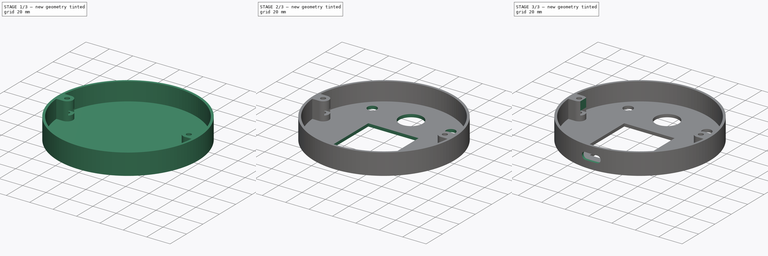
[diagram: build sequence overview — one tinted view per stage of 3, left to right]
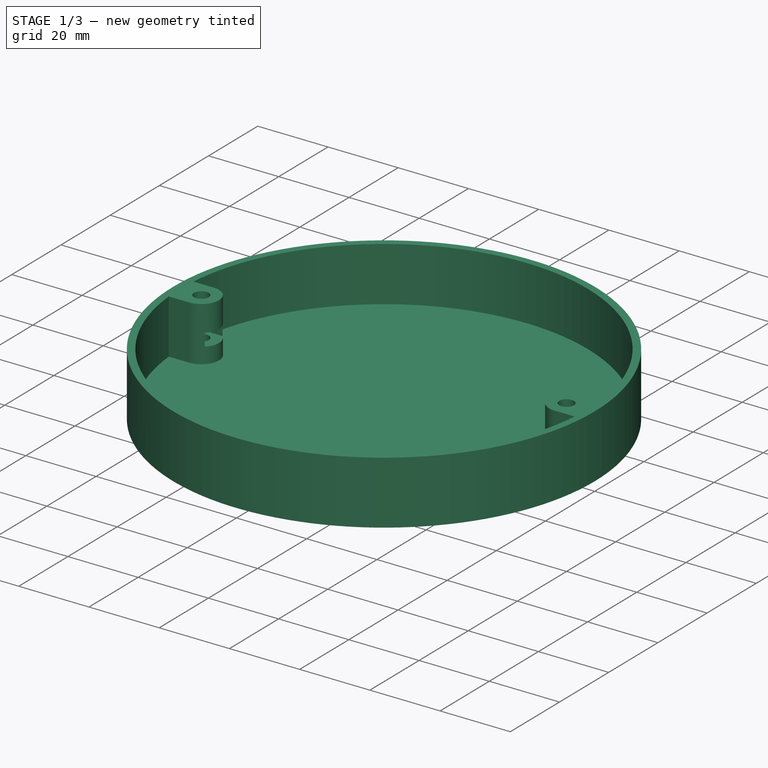
[diagram: stage 1 of 3 — iso view after this stage's code; geometry added in this stage tinted green]
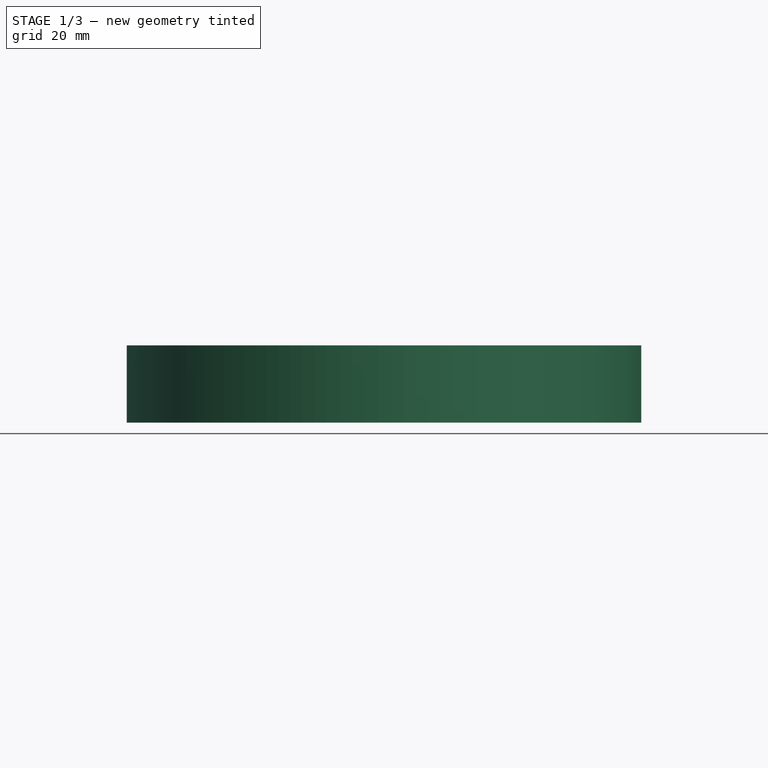
[diagram: stage 1 of 3 — front view after this stage's code; geometry added in this stage tinted green]
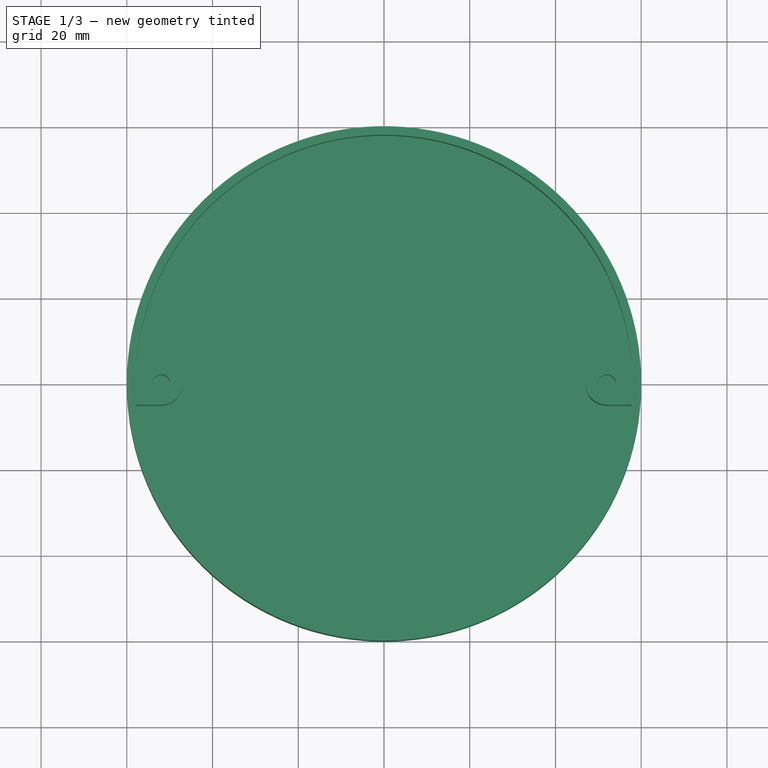
[diagram: stage 1 of 3 — top view after this stage's code; geometry added in this stage tinted green]
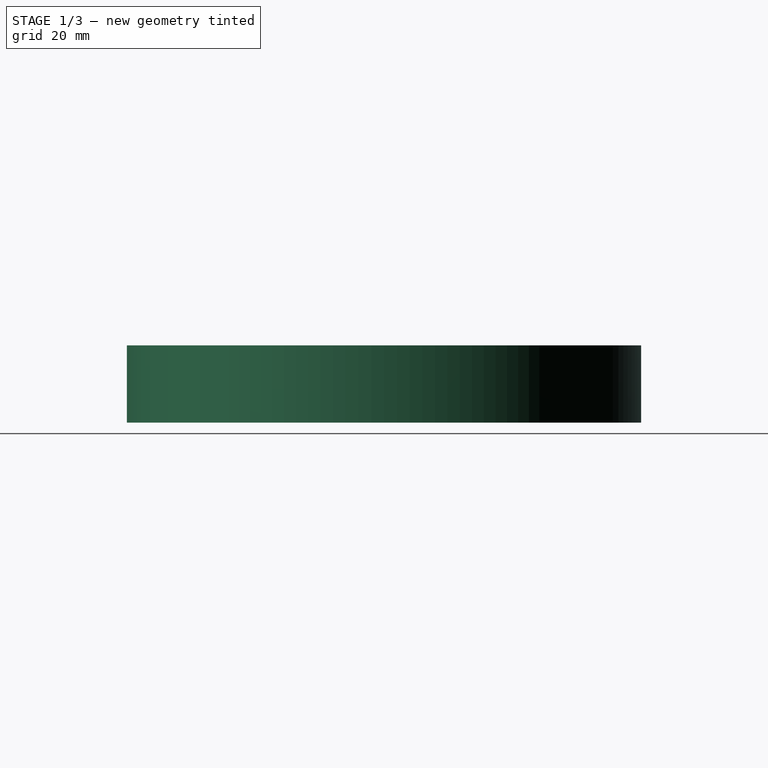
[diagram: stage 1 of 3 — right view after this stage's code; geometry added in this stage tinted green]
FCSTD DOCUMENT  (FreeCAD 0.19R24276 (Git))
Label: Top_cover_8mm
License: All rights reserved
LicenseURL: http://en.wikipedia.org/wiki/All_rights_reserved
objects: Sketcher::SketchObject×7, PartDesign::Pocket×5, PartDesign::Pad×2, PartDesign::Chamfer×1, PartDesign::Body×1
note: 24 computed .brp shape members not serialized (recipe doc carries the construction recipe); baked Part::Feature solids carry a one-line shape summary decoded from their .brp

FEATURE [Sketcher::SketchObject] Sketch
  FullyConstrained = true
  MapMode = 5
  Support = -> [XY_Plane]
  sketch-geometry (1):
    g0: Circle CenterX=0 CenterY=0 CenterZ=0 NormalX=0 NormalY=0 NormalZ=1 AngleXU=0 Radius=60
  constraints (2):
    c: Coincident(g0,g-1)
    c: Radius(g0) = 60
FEATURE [PartDesign::Pad] Pad
  Direction = (1,1,1)
  Length = 18
  Length2 = 100
  Profile = -> Sketch
  Type = 0
FEATURE [Sketcher::SketchObject] Sketch001
  FullyConstrained = true
  MapMode = 5
  Placement = pos=(0,0,18) rot=(0,0,1;0rad)
  Support = -> [Pad]
  sketch-geometry (12):
    g0: ArcOfCircle CenterX=0 CenterY=0 CenterZ=0 NormalX=0 NormalY=0 NormalZ=1 AngleXU=0 Radius=58 StartAngle=3.22791 EndAngle=6.19687
    g1: Circle CenterX=-52 CenterY=0 CenterZ=0 NormalX=0 NormalY=0 NormalZ=1 AngleXU=0 Radius=2.1
    g2: Circle CenterX=52 CenterY=0 CenterZ=0 NormalX=0 NormalY=0 NormalZ=1 AngleXU=0 Radius=2.1
    g3: LineSegment StartX=-57.7841 StartY=5 StartZ=0 EndX=-52 EndY=5 EndZ=0
    g4: LineSegment StartX=-52 StartY=5 StartZ=0 EndX=-52 EndY=-5 EndZ=0
    g5: LineSegment StartX=-52 StartY=-5 StartZ=0 EndX=-57.7841 EndY=-5 EndZ=0
    g6: LineSegment StartX=57.7841 StartY=-5 StartZ=0 EndX=52 EndY=-5 EndZ=0
    g7: LineSegment StartX=52 StartY=-5 StartZ=0 EndX=52 EndY=5 EndZ=0
    g8: LineSegment StartX=52 StartY=5 StartZ=0 EndX=57.7841 EndY=5 EndZ=0
    g9: ArcOfCircle CenterX=-52 CenterY=0 CenterZ=0 NormalX=0 NormalY=0 NormalZ=1 AngleXU=0 Radius=5 StartAngle=4.71239 EndAngle=7.85398
    g10: ArcOfCircle CenterX=52 CenterY=0 CenterZ=0 NormalX=0 NormalY=0 NormalZ=1 AngleXU=0 Radius=5 StartAngle=1.5708 EndAngle=4.71239
    g11: ArcOfCircle CenterX=0 CenterY=0 CenterZ=0 NormalX=0 NormalY=0 NormalZ=1 AngleXU=0 Radius=58 StartAngle=0.086314 EndAngle=3.05528
  constraints (33):
    c: Coincident(g0,g-1)
    c: Radius(g0) = 58
    c: PointOnObject(g1,g-1)
    c: Radius(g1) = 2.1
    c: Equal(g1,g2)
    c: Symmetric(g2,g1,g-2)
    c: DistanceX(g1) = -52
    c: Horizontal(g3)
    c: Coincident(g3,g4)
    c: Vertical(g4)
    c: Coincident(g4,g5)
    c: Horizontal(g5)
    c: Horizontal(g6)
    c: Coincident(g6,g7)
    c: Vertical(g7)
    c: Coincident(g7,g8)
    c: Horizontal(g8)
    c: Coincident(g9,g1)
    c: Coincident(g9,g3)
    c: Coincident(g9,g5)
    c: Coincident(g10,g2)
    c: Coincident(g10,g8)
    c: Coincident(g10,g6)
    c: PointOnObject(g1,g4)
    c: PointOnObject(g2,g7)
    c: Equal(g9,g10)
    c: Radius(g9) = 5
    c: Coincident(g0,g5)
    c: Coincident(g11,g3)
    c: Equal(g0,g11)
    c: Coincident(g0,g6)
    c: Coincident(g11,g8)
    c: Coincident(g0,g11)
FEATURE [PartDesign::Pocket] Pocket
  BaseFeature = -> Pad
  Length = 15.5
  Length2 = 100
  Profile = -> Sketch001
  Type = 0
FEATURE [Sketcher::SketchObject] Sketch002
  FullyConstrained = true
  MapMode = 5
  Placement = pos=(0,0,0) rot=(0.57735,0.57735,0.57735;2.0944rad)
  Support = -> [YZ_Plane]
  sketch-geometry (4):
    g0: LineSegment StartX=-3.6 StartY=10.6 StartZ=0 EndX=3.6 EndY=10.6 EndZ=0
    g1: LineSegment StartX=3.6 StartY=10.6 StartZ=0 EndX=3.6 EndY=7 EndZ=0
    g2: LineSegment StartX=3.6 StartY=7 StartZ=0 EndX=-3.6 EndY=7 EndZ=0
    g3: LineSegment StartX=-3.6 StartY=7 StartZ=0 EndX=-3.6 EndY=10.6 EndZ=0
  constraints (11):
    c: Coincident(g0,g1)
    c: Coincident(g1,g2)
    c: Coincident(g2,g3)
    c: Coincident(g3,g0)
    c: Horizontal(g2)
    c: Vertical(g1)
    c: Vertical(g3)
    c: Symmetric(g0,g0,g-2)
    c: DistanceX(g2,g2) = 7.2
    c: DistanceY(g1,g1) = 3.6
    c: DistanceY(g1) = 7
FEATURE [PartDesign::Pocket] Pocket001
  BaseFeature = -> Pocket
  Length = 112.2
  Length2 = 100
  Midplane = true
  Profile = -> Sketch002
  Type = 0
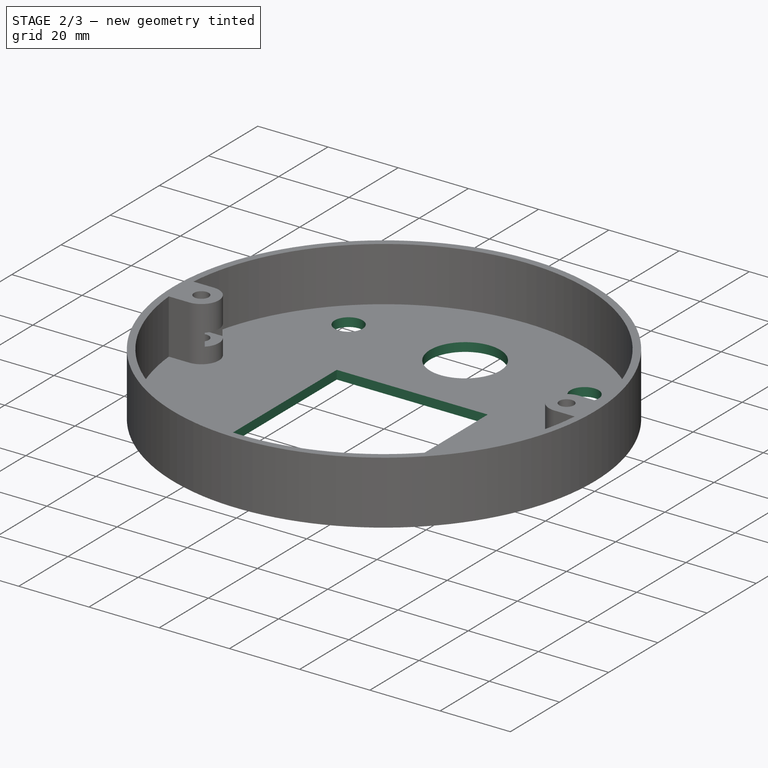
[diagram: stage 2 of 3 — iso view after this stage's code; geometry added in this stage tinted green]
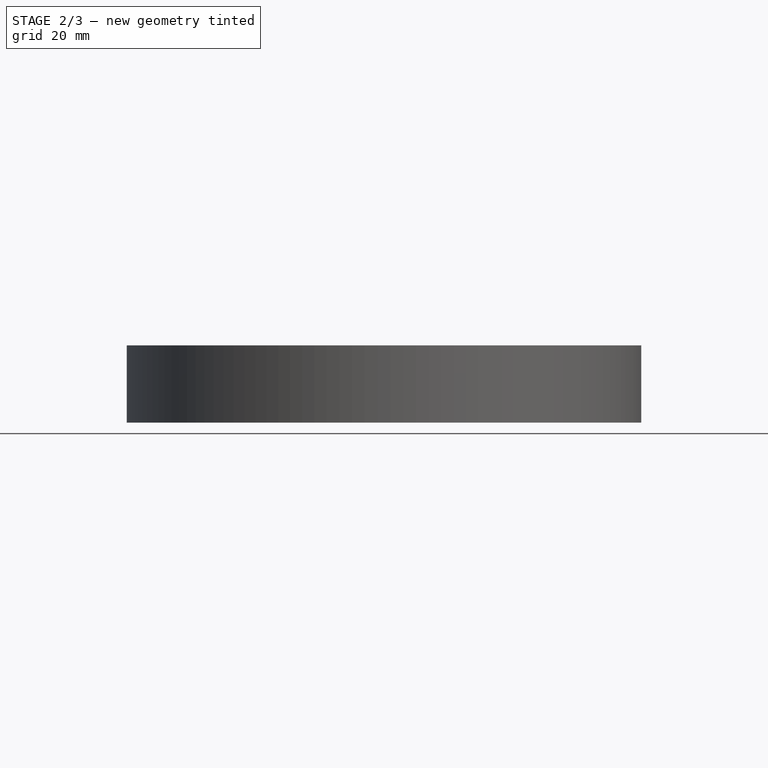
[diagram: stage 2 of 3 — front view after this stage's code; geometry added in this stage tinted green]
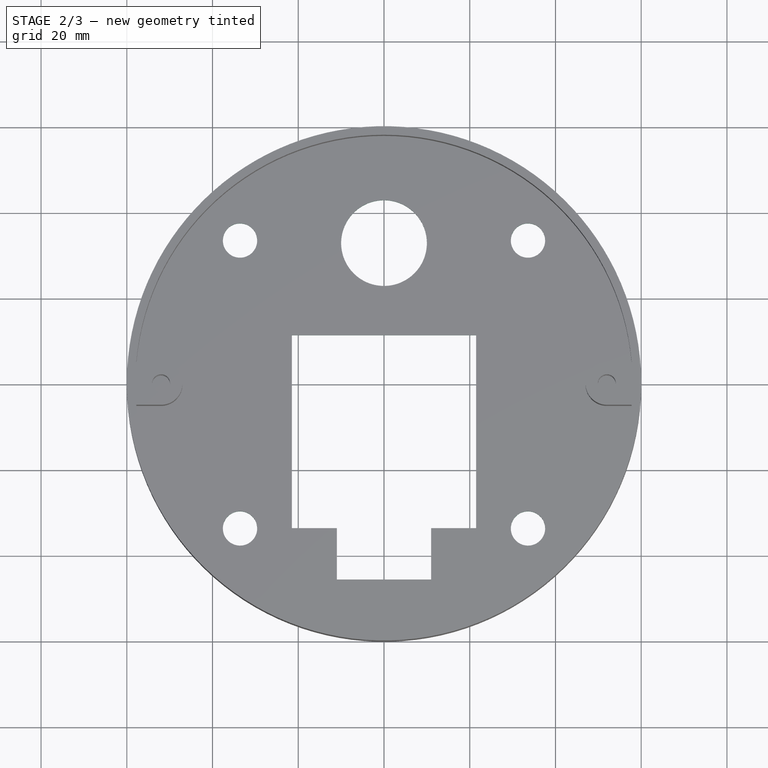
[diagram: stage 2 of 3 — top view after this stage's code; geometry added in this stage tinted green]
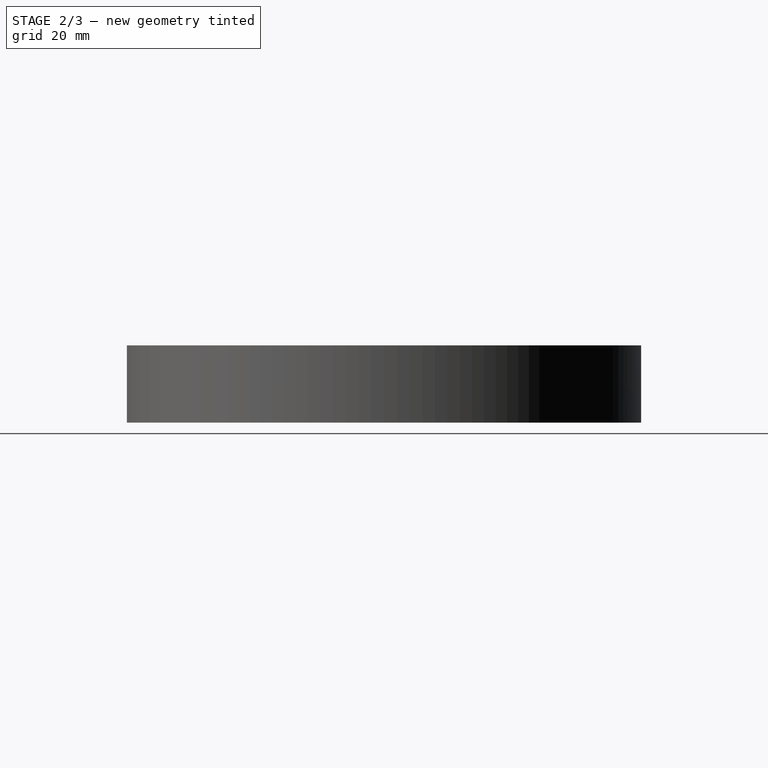
[diagram: stage 2 of 3 — right view after this stage's code; geometry added in this stage tinted green]
FEATURE [PartDesign::Chamfer] Chamfer
  Angle = 45
  Base = -> Pocket001 [Edge54,Edge59,Edge45,Edge51]
  BaseFeature = -> Pocket001
  ChamferType = 1
  FlipDirection = false
  Size = 2.07
  Size2 = 3.59
  SupportTransform = false
FEATURE [Sketcher::SketchObject] Sketch003
  FullyConstrained = true
  MapMode = 5
  Placement = pos=(0,0,2.5) rot=(0,0,1;0rad)
  Support = -> [Chamfer]
  sketch-geometry (18):
    g0: Circle CenterX=-33.5876 CenterY=33.5876 CenterZ=0 NormalX=0 NormalY=0 NormalZ=1 AngleXU=0 Radius=4
    g1: Circle CenterX=33.5876 CenterY=-33.5876 CenterZ=0 NormalX=0 NormalY=0 NormalZ=1 AngleXU=0 Radius=4
    g2: LineSegment StartX=-33.5876 StartY=33.5876 StartZ=0 EndX=33.5876 EndY=33.5876 EndZ=0
    g3: LineSegment StartX=33.5876 StartY=33.5876 StartZ=0 EndX=33.5876 EndY=-33.5876 EndZ=0
    g4: LineSegment StartX=33.5876 StartY=-33.5876 StartZ=0 EndX=-33.5876 EndY=-33.5876 EndZ=0
    g5: LineSegment StartX=-33.5876 StartY=-33.5876 StartZ=0 EndX=-33.5876 EndY=33.5876 EndZ=0
    g6: Circle CenterX=33.5876 CenterY=33.5876 CenterZ=0 NormalX=0 NormalY=0 NormalZ=1 AngleXU=0 Radius=4
    g7: Circle CenterX=-33.5876 CenterY=-33.5876 CenterZ=0 NormalX=0 NormalY=0 NormalZ=1 AngleXU=0 Radius=4
    g8: Circle CenterX=0 CenterY=0 CenterZ=0 NormalX=0 NormalY=0 NormalZ=1 AngleXU=0 Radius=47.5
    g9: Circle CenterX=0 CenterY=33 CenterZ=0 NormalX=0 NormalY=0 NormalZ=1 AngleXU=0 Radius=10
    g10: LineSegment StartX=-21.5 StartY=11.5 StartZ=0 EndX=21.5 EndY=11.5 EndZ=0
    g11: LineSegment StartX=21.5 StartY=11.5 StartZ=0 EndX=21.5 EndY=-33.5 EndZ=0
    g12: LineSegment StartX=21.5 StartY=-33.5 StartZ=0 EndX=11 EndY=-33.5 EndZ=0
    g13: LineSegment StartX=-21.5 StartY=-33.5 StartZ=0 EndX=-21.5 EndY=11.5 EndZ=0
    g14: LineSegment StartX=-11 StartY=-33.5 StartZ=0 EndX=-11 EndY=-45.5 EndZ=0
    g15: LineSegment StartX=-11 StartY=-45.5 StartZ=0 EndX=11 EndY=-45.5 EndZ=0
    g16: LineSegment StartX=11 StartY=-45.5 StartZ=0 EndX=11 EndY=-33.5 EndZ=0
    g17: LineSegment StartX=-11 StartY=-33.5 StartZ=0 EndX=-21.5 EndY=-33.5 EndZ=0
  constraints (46):
    c: Coincident(g2,g3)
    c: Coincident(g3,g4)
    c: Coincident(g4,g5)
    c: Coincident(g5,g2)
    c: Horizontal(g2)
    c: Horizontal(g4)
    c: Vertical(g3)
    c: Vertical(g5)
    c: Coincident(g2,g0)
    c: Coincident(g3,g1)
    c: Symmetric(g2,g4,g-1)
    c: Coincident(g6,g2)
    c: Coincident(g7,g4)
    c: Equal(g0,g6)
    c: Equal(g6,g1)
    c: Equal(g1,g7)
    c: Radius(g6) = 4
    c: Coincident(g8,g-1)
    c: PointOnObject(g0,g8)
    c: Radius(g8) = 47.5
    c: Equal(g5,g4)
    c: PointOnObject(g9,g-2)
    c: Radius(g9) = 10
    c: DistanceY(g9) = 33
    c: Coincident(g10,g11)
    c: Coincident(g11,g12)
    c: Coincident(g17,g13)
    c: Coincident(g13,g10)
    c: Horizontal(g12)
    c: Vertical(g11)
    c: Vertical(g13)
    c: DistanceY(g11,g11) = 45
    c: Symmetric(g10,g10,g-2)
    c: DistanceY(g10) = 11.5
    c: Vertical(g14)
    c: Coincident(g14,g15)
    c: Horizontal(g15)
    c: Coincident(g15,g16)
    c: Vertical(g16)
    c: Coincident(g12,g16)
    c: Coincident(g17,g14)
    c: Tangent(g12,g17)
    c: Equal(g17,g12)
    c: DistanceY(g16,g16) = 12
    c: DistanceX(g15,g15) = 22
    c: DistanceX(g10,g10) = 43
FEATURE [PartDesign::Pocket] Pocket002
  BaseFeature = -> Chamfer
  Length = 5
  Length2 = 100
  Profile = -> Sketch003
  Type = 1
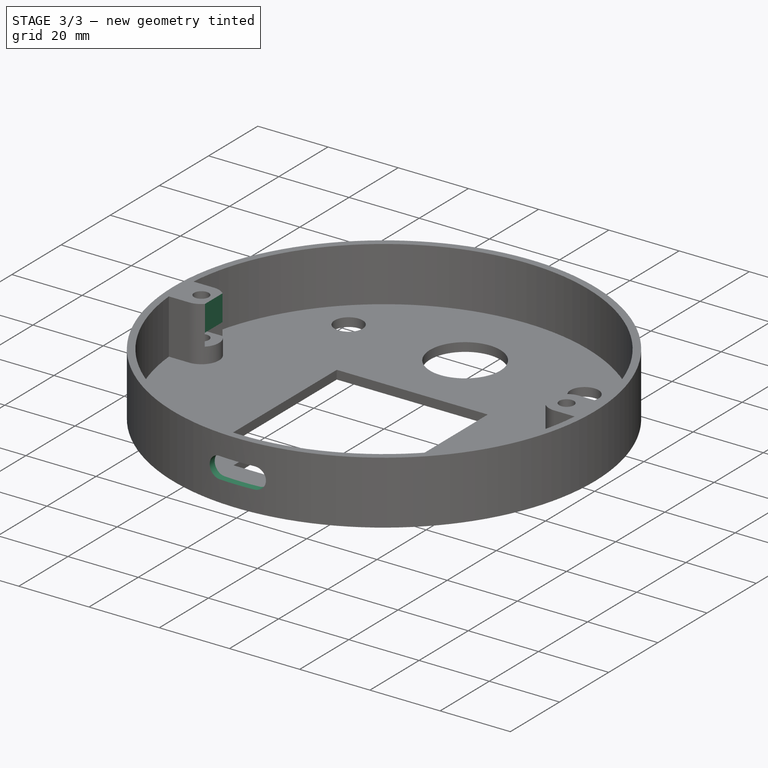
[diagram: stage 3 of 3 — iso view after this stage's code; geometry added in this stage tinted green]
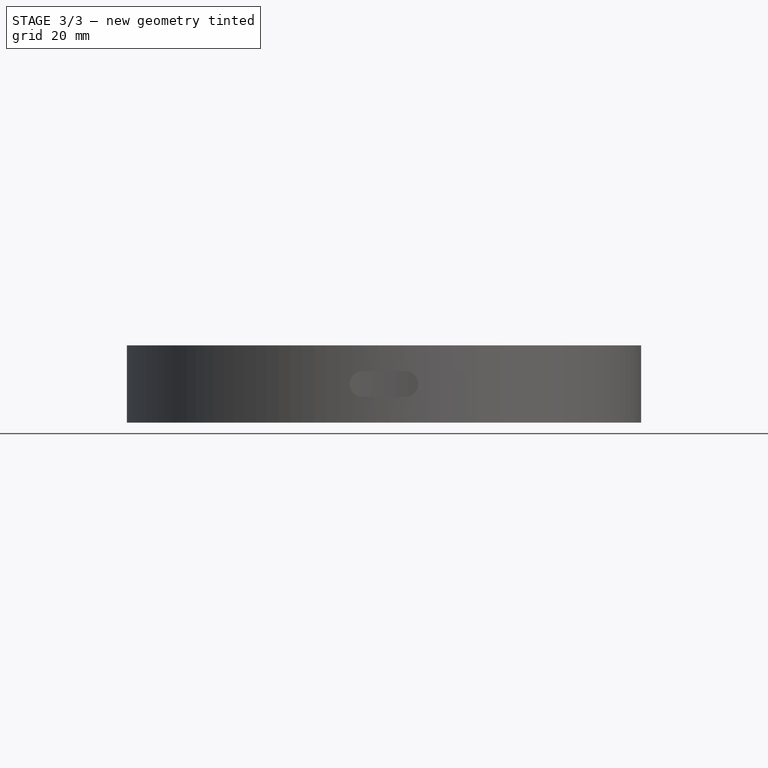
[diagram: stage 3 of 3 — front view after this stage's code; geometry added in this stage tinted green]
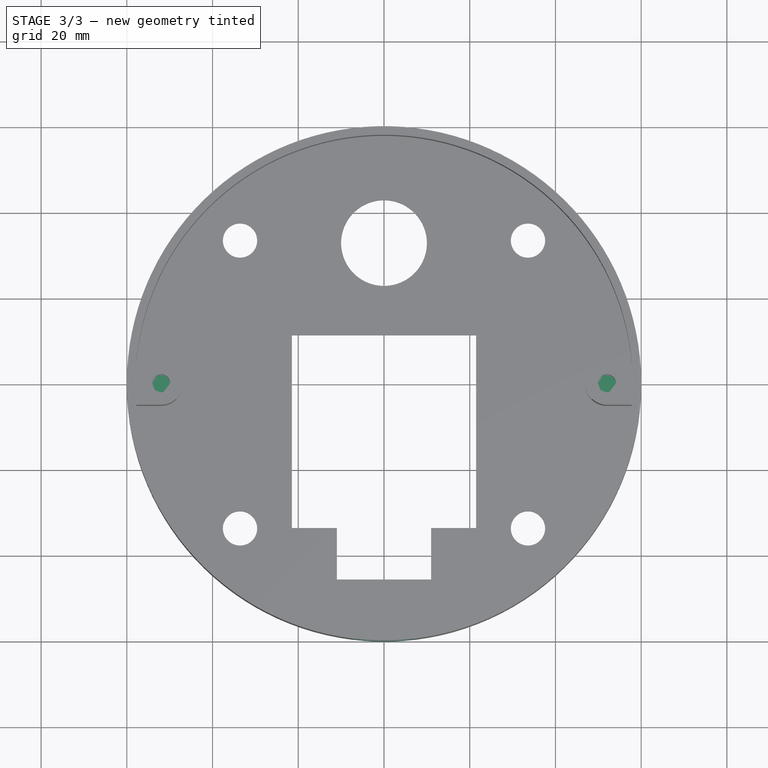
[diagram: stage 3 of 3 — top view after this stage's code; geometry added in this stage tinted green]
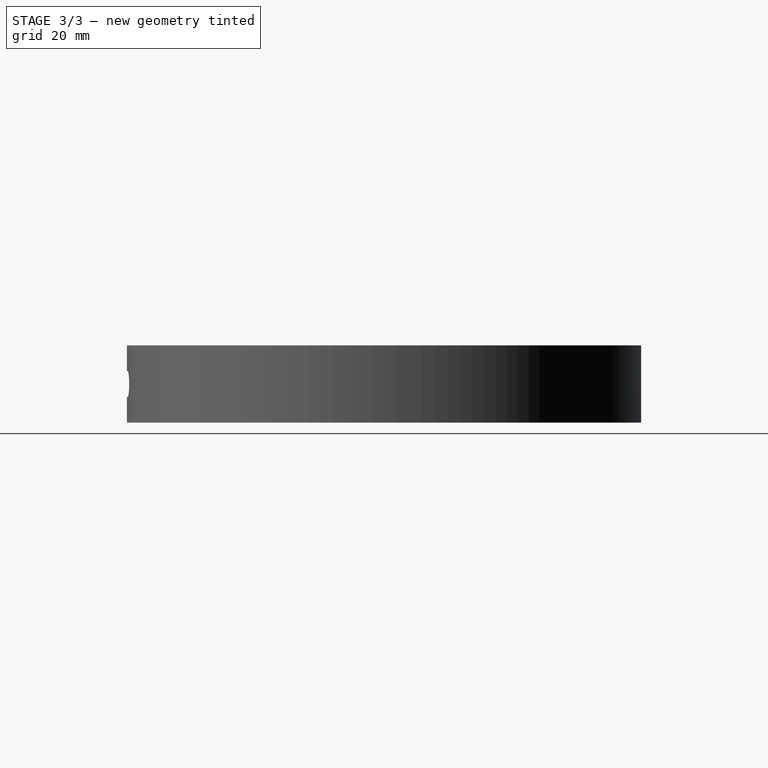
[diagram: stage 3 of 3 — right view after this stage's code; geometry added in this stage tinted green]
FEATURE [Sketcher::SketchObject] Sketch004
  FullyConstrained = true
  MapMode = 5
  Placement = pos=(0,-5,0) rot=(1,0,0;1.5708rad)
  Support = -> [Pocket002]
  sketch-geometry (4):
    g0: ArcOfCircle CenterX=-5 CenterY=9 CenterZ=0 NormalX=0 NormalY=0 NormalZ=1 AngleXU=0 Radius=3 StartAngle=1.5708 EndAngle=4.71239
    g1: ArcOfCircle CenterX=5 CenterY=9 CenterZ=0 NormalX=0 NormalY=0 NormalZ=1 AngleXU=0 Radius=3 StartAngle=4.71239 EndAngle=7.85398
    g2: LineSegment StartX=-5 StartY=6 StartZ=0 EndX=5 EndY=6 EndZ=0
    g3: LineSegment StartX=-5 StartY=12 StartZ=0 EndX=5 EndY=12 EndZ=0
  constraints (9):
    c: Tangent(g0,g3) = 1.5708
    c: Tangent(g0,g2) = -1.5708
    c: Tangent(g2,g1) = -1.5708
    c: Tangent(g3,g1) = 1.5708
    c: Horizontal(g2)
    c: DistanceX(g3,g3) = 10
    c: Symmetric(g0,g1,g-2)
    c: Radius(g1) = 3
    c: DistanceY(g1) = 9
FEATURE [PartDesign::Pocket] Pocket003
  BaseFeature = -> Pocket002
  Length = 60
  Length2 = 100
  Profile = -> Sketch004
  Reversed = true
  Type = 0
FEATURE [Sketcher::SketchObject] Sketch005
  FullyConstrained = true
  MapMode = 5
  Placement = pos=(-3e-15,5e-15,10.6) rot=(1,0,0;3.14159rad)
  Support = -> [Pocket003]
  sketch-geometry (2):
    g0: Circle CenterX=-52 CenterY=0 CenterZ=0 NormalX=0 NormalY=0 NormalZ=1 AngleXU=0 Radius=2.1
    g1: Circle CenterX=52 CenterY=0 CenterZ=0 NormalX=0 NormalY=0 NormalZ=1 AngleXU=0 Radius=2.1
  constraints (5):
    c: PointOnObject(g0,g-1)
    c: Symmetric(g0,g1,g-2)
    c: DistanceX(g0,g1) = 104
    c: Equal(g1,g0)
    c: Radius(g0) = 2.1
FEATURE [PartDesign::Pad] Pad001
  BaseFeature = -> Pocket003
  Direction = (1,1,1)
  Length = 0.2
  Length2 = 100
  Profile = -> Sketch005
  Reversed = true
  Type = 0
FEATURE [Sketcher::SketchObject] Sketch006
  FullyConstrained = true
  MapMode = 5
  Placement = pos=(0,0,18) rot=(0,0,1;0rad)
  Support = -> [Pad001]
  sketch-geometry (4):
    g0: LineSegment StartX=-48.5 StartY=5 StartZ=0 EndX=48.5 EndY=5 EndZ=0
    g1: LineSegment StartX=48.5 StartY=5 StartZ=0 EndX=48.5 EndY=-5 EndZ=0
    g2: LineSegment StartX=48.5 StartY=-5 StartZ=0 EndX=-48.5 EndY=-5 EndZ=0
    g3: LineSegment StartX=-48.5 StartY=-5 StartZ=0 EndX=-48.5 EndY=5 EndZ=0
  constraints (11):
    c: Coincident(g0,g1)
    c: Coincident(g1,g2)
    c: Coincident(g2,g3)
    c: Coincident(g3,g0)
    c: Horizontal(g0)
    c: Horizontal(g2)
    c: Vertical(g1)
    c: Vertical(g3)
    c: Symmetric(g0,g1,g-1)
    c: DistanceY(g3,g3) = 10
    c: DistanceX(g2,g2) = 97
FEATURE [PartDesign::Pocket] Pocket004
  BaseFeature = -> Pad001
  Length = 10.99
  Length2 = 100
  Profile = -> Sketch006
  Type = 0
FEATURE [PartDesign::Body] Body
  Group = -> [Sketch,Pad,Sketch001,Pocket,Sketch002,Pocket001,Chamfer,Sketch003,Pocket002,Sketch004,Pocket003,Sketch005,Pad001,Sketch006,Pocket004]
  Origin = -> Origin
  Tip = -> Pocket004
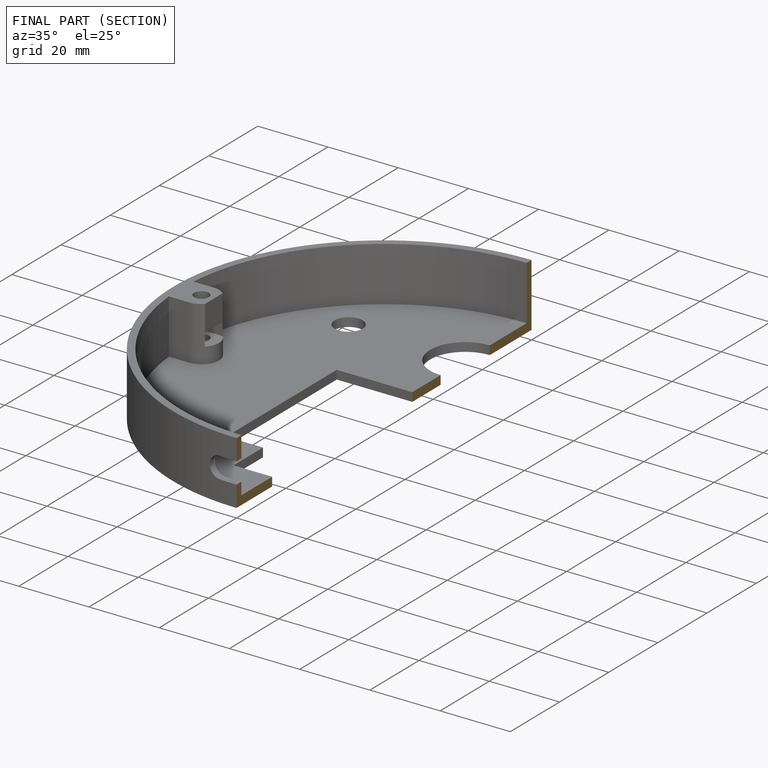
[diagram: finished part — half-section view (interior)]
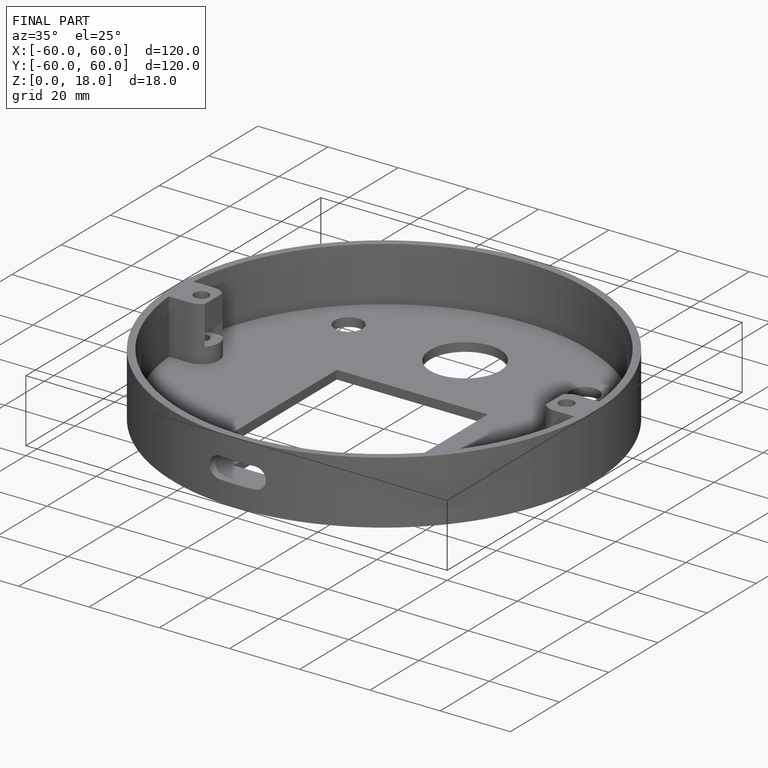
[diagram: finished part — iso view with bounding-box wireframe]
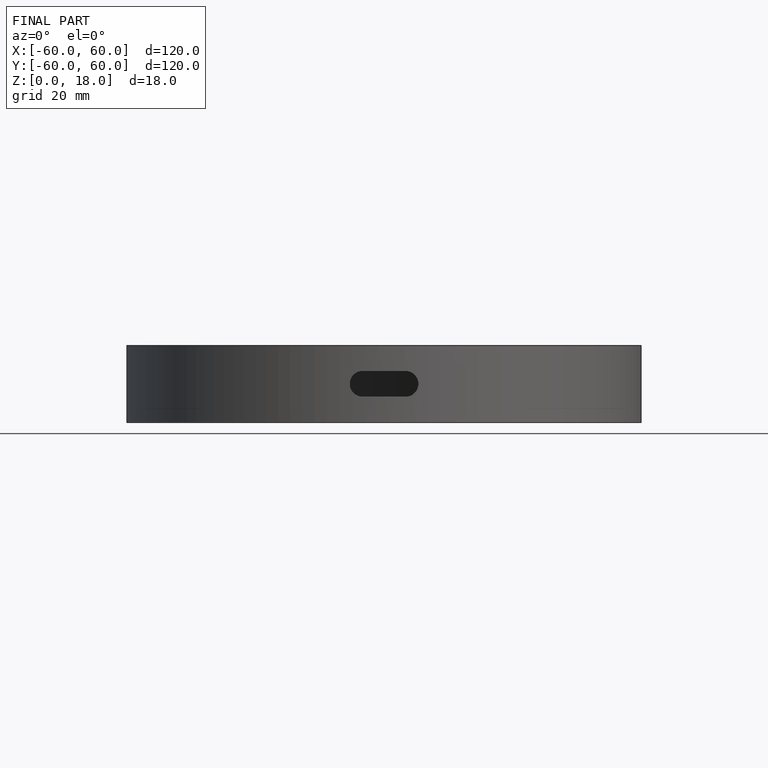
[diagram: finished part — front view with bounding-box wireframe]
